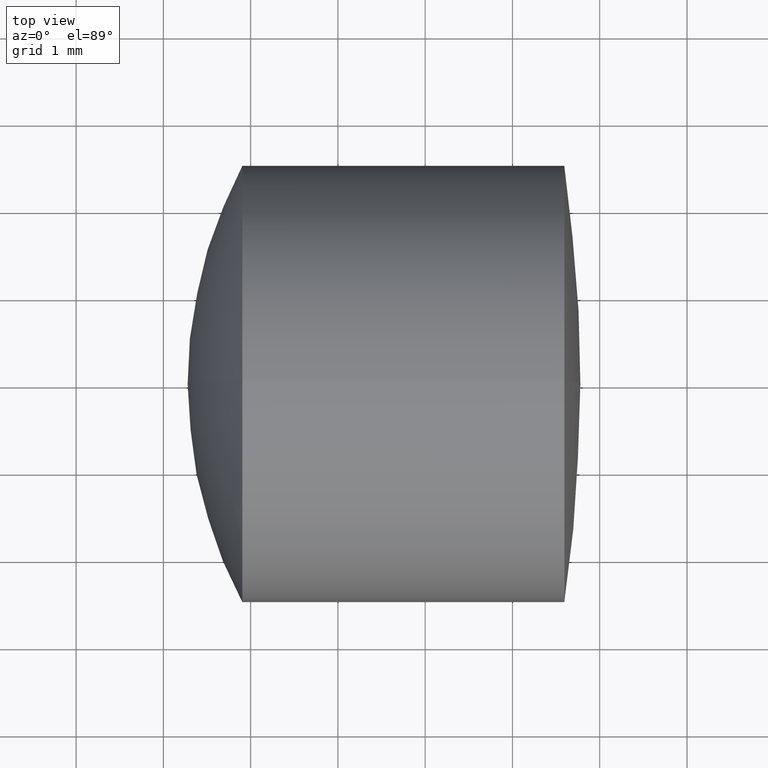
[diagram: clean part render]
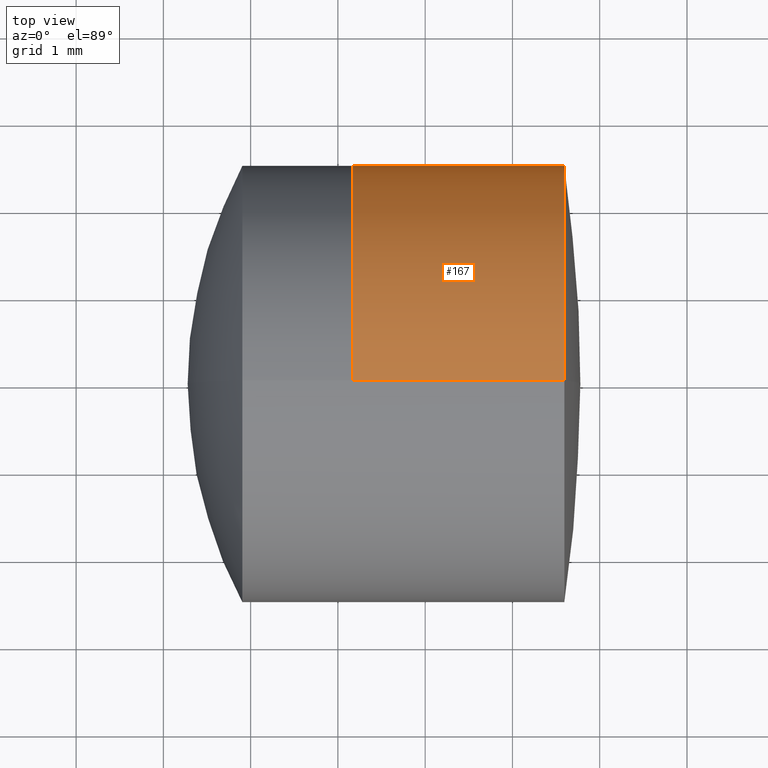
[diagram: same view with one face highlighted and labeled with its STEP entity id]
A machine part, top view. The second image highlights one B-rep face of the part: STEP entity #167.
In plain terms, the highlighted cylindrical surface (partial cylindrical patch) has radius 2.5 mm, axis along (-1, -0, -0).
Its self-contained STEP definition (entity closure, byte-faithful):
#14 = ORIENTED_EDGE ( 'NONE', *, *, #136, .T. ) ;
#17 = VERTEX_POINT ( 'NONE', #287 ) ;
#22 = CARTESIAN_POINT ( 'NONE',  ( -0.5519199926577972300, 3.061616997868381700E-016, -2.499999999999998700 ) ) ;
#34 = DIRECTION ( 'NONE',  ( 0.0000000000000000000, 0.0000000000000000000, 1.000000000000000000 ) ) ;
#38 = FACE_OUTER_BOUND ( 'NONE', #333, .T. ) ;
#62 = DIRECTION ( 'NONE',  ( -1.000000000000000000, -0.0000000000000000000, -0.0000000000000000000 ) ) ;
#80 = CARTESIAN_POINT ( 'NONE',  ( -0.5519199926577972300, 0.0000000000000000000, 2.499999999999998700 ) ) ;
#85 = CARTESIAN_POINT ( 'NONE',  ( 5.594478696093561100, 0.0000000000000000000, 2.499999999999997800 ) ) ;
#97 = VERTEX_POINT ( 'NONE', #268 ) ;
#101 = ORIENTED_EDGE ( 'NONE', *, *, #168, .T. ) ;
#113 = CARTESIAN_POINT ( 'NONE',  ( 5.594478696093561100, 0.0000000000000000000, 0.0000000000000000000 ) ) ;
#120 = VECTOR ( 'NONE', #346, 1000.000000000000000 ) ;
#121 = CARTESIAN_POINT ( 'NONE',  ( 5.594478696093561100, 3.061616997868381200E-016, -2.499999999999997800 ) ) ;
#126 = CIRCLE ( 'NONE', #187, 2.499999999999997800 ) ;
#129 = VECTOR ( 'NONE', #138, 1000.000000000000000 ) ;
#132 = LINE ( 'NONE', #22, #120 ) ;
#136 = EDGE_CURVE ( 'NONE', #294, #143, #126, .T. ) ;
#138 = DIRECTION ( 'NONE',  ( -1.000000000000000000, -0.0000000000000000000, -0.0000000000000000000 ) ) ;
#142 = CARTESIAN_POINT ( 'NONE',  ( -0.5519199926577972300, 0.0000000000000000000, 0.0000000000000000000 ) ) ;
#143 = VERTEX_POINT ( 'NONE', #121 ) ;
#166 = DIRECTION ( 'NONE',  ( 0.0000000000000000000, 0.0000000000000000000, 1.000000000000000000 ) ) ;
#167 = ADVANCED_FACE ( 'NONE', ( #38 ), #184, .T. ) ;
#168 = EDGE_CURVE ( 'NONE', #143, #97, #132, .T. ) ;
#184 = CYLINDRICAL_SURFACE ( 'NONE', #315, 2.499999999999998700 ) ;
#187 = AXIS2_PLACEMENT_3D ( 'NONE', #113, #194, #34 ) ;
#191 = LINE ( 'NONE', #80, #129 ) ;
#194 = DIRECTION ( 'NONE',  ( -1.000000000000000000, -0.0000000000000000000, -0.0000000000000000000 ) ) ;
#197 = CIRCLE ( 'NONE', #267, 2.499999999999999100 ) ;
#205 = EDGE_CURVE ( 'NONE', #17, #97, #197, .T. ) ;
#221 = EDGE_CURVE ( 'NONE', #294, #17, #191, .T. ) ;
#243 = ORIENTED_EDGE ( 'NONE', *, *, #205, .F. ) ;
#264 = DIRECTION ( 'NONE',  ( 0.0000000000000000000, 0.0000000000000000000, 1.000000000000000000 ) ) ;
#267 = AXIS2_PLACEMENT_3D ( 'NONE', #335, #62, #264 ) ;
#268 = CARTESIAN_POINT ( 'NONE',  ( 3.171540242480312500, 3.061616997868382200E-016, -2.499999999999999100 ) ) ;
#285 = DIRECTION ( 'NONE',  ( -1.000000000000000000, -0.0000000000000000000, -0.0000000000000000000 ) ) ;
#287 = CARTESIAN_POINT ( 'NONE',  ( 3.171540242480312500, 0.0000000000000000000, 2.499999999999999100 ) ) ;
#293 = ORIENTED_EDGE ( 'NONE', *, *, #221, .F. ) ;
#294 = VERTEX_POINT ( 'NONE', #85 ) ;
#315 = AXIS2_PLACEMENT_3D ( 'NONE', #142, #285, #166 ) ;
#333 = EDGE_LOOP ( 'NONE', ( #14, #101, #243, #293 ) ) ;
#335 = CARTESIAN_POINT ( 'NONE',  ( 3.171540242480312500, 0.0000000000000000000, 0.0000000000000000000 ) ) ;
#346 = DIRECTION ( 'NONE',  ( -1.000000000000000000, -0.0000000000000000000, -0.0000000000000000000 ) ) ;